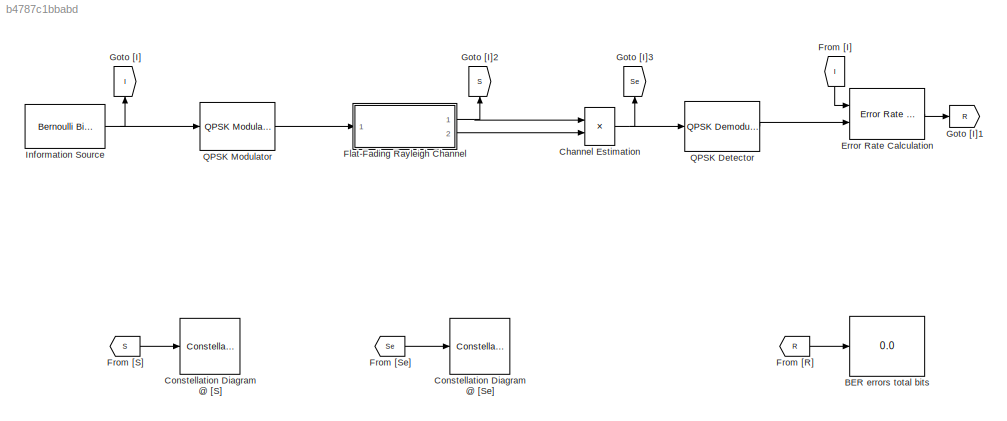
MODEL slx_b4787c1bbabd
KIND model
CONFIG AbsTol = auto
CONFIG FixedStep = auto
CONFIG MaxStep = auto
CONFIG MinStep = auto
CONFIG RelTol = 1e-3
CONFIG SampleTimeConstraint = Unconstrained
CONFIG Solver = ode45
CONFIG SolverMode = Auto
CONFIG SolverName = ode45
CONFIG StartTime = 0.0
CONFIG StopTime = Inf
BLOCK [Display] BER errors total bits
  Decimation = 1
  Format = short_e
  Ports = [1]
BLOCK [Product] Channel Estimation
  InputSameDT = off
  Inputs = */
  OutDataTypeStr = Inherit: Inherit via internal rule
  Ports = [2, 1]
  RndMeth = Floor
  SaturateOnIntegerOverflow = off
BLOCK [ConstellationDiagram] Constellation Diagram @ [S]
  Ports = [1]
  ScopeSpecificationString = comm.scopes.ConstellationDiagramBlockCfg('CurrentConfiguration', extmgr.ConfigurationSet(extmgr.Configuration('Core','General UI',true),extmgr.Configuration('Core','Source UI',true),extmgr.Configuration('Sources','WiredSimulink',true),extmgr.Configuration('Visuals','Constellation',true,'AxesProperties',struct('Color',[0 0 0],'XColor',[0.686274509803922 0.686274509803922 0.686274509803922],'YColor'...<+964ch>
BLOCK [ConstellationDiagram] Constellation Diagram @ [Se]
  Ports = [1]
  ScopeSpecificationString = comm.scopes.ConstellationDiagramBlockCfg('CurrentConfiguration', extmgr.ConfigurationSet(extmgr.Configuration('Core','General UI',true),extmgr.Configuration('Core','Source UI',true),extmgr.Configuration('Sources','WiredSimulink',true),extmgr.Configuration('Visuals','Constellation',true,'AxesProperties',struct('Color',[0 0 0],'XColor',[0.686274509803922 0.686274509803922 0.686274509803922],'YColor'...<+937ch>
BLOCK [Reference] Error Rate Calculation  REF=commsink2/Error Rate
Calculation
  N = 0
  PMode = Port
  Ports = [2, 1]
  RsMode2 = off
  SourceBlock = commsink2/Error Rate\nCalculation
  SourceType = Error Rate Calculation
  WsName = ErrorVec
  cp_mode = Entire frame
  maxBits = 1e6
  numErr = 100
  st_delay = 0
  stop = off
  subframe = []
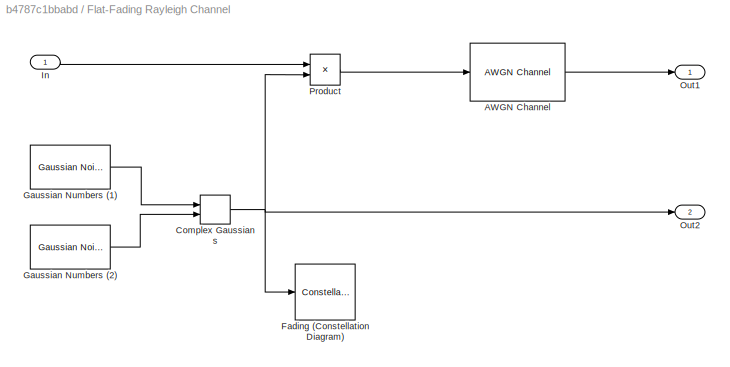
BLOCK [SubSystem] Flat-Fading Rayleigh Channel
  Ports = [1, 2]
  RequestExecContextInheritance = off
BLOCK [Reference] Flat-Fading Rayleigh Channel/AWGN Channel  REF=commchan3/AWGN
Channel
  EbNodB = 10
  EsNodB = 10
  InputProcessing = Columns as channels (frame based)
  Ports = [1, 1]
  Ps = 1
  SNRdB = 23
  SourceBlock = commchan3/AWGN\nChannel
  SourceType = AWGN Channel
  Tsym = 1
  UserDataPersistent = on
  bitsPerSym = 2
  noiseMode = Signal to noise ratio  (SNR)
  seed = 67
  variance = 1
BLOCK [RealImagToComplex] Flat-Fading Rayleigh Channel/Complex Gaussians
  Ports = [2, 1]
BLOCK [ConstellationDiagram] Flat-Fading Rayleigh Channel/Fading (Constellation Diagram)
  Ports = [1]
  ScopeSpecificationString = comm.scopes.ConstellationDiagramBlockCfg('CurrentConfiguration', extmgr.ConfigurationSet(extmgr.Configuration('Core','General UI',true),extmgr.Configuration('Core','Source UI',true),extmgr.Configuration('Sources','WiredSimulink',true),extmgr.Configuration('Visuals','Constellation',true,'AxesProperties',struct('Color',[0 0 0],'XColor',[0.686274509803922 0.686274509803922 0.686274509803922],'YColor'...<+964ch>
BLOCK [Reference] Flat-Fading Rayleigh Channel/Gaussian Numbers (1)  REF=commnoisgen2/Gaussian Noise
Generator
  Ports = [0, 1]
  SourceBlock = commnoisgen2/Gaussian Noise\nGenerator
  SourceType = Gaussian Noise Generator
  Ts = .001
  d = 1/2
  frameBased = on
  m = 0
  orient = off
  outDataType = double
  s = 41
  sampPerFrame = 500
BLOCK [Reference] Flat-Fading Rayleigh Channel/Gaussian Numbers (2)  REF=commnoisgen2/Gaussian Noise
Generator
  Ports = [0, 1]
  SourceBlock = commnoisgen2/Gaussian Noise\nGenerator
  SourceType = Gaussian Noise Generator
  Ts = .001
  d = 1/2
  frameBased = on
  m = 0
  orient = off
  outDataType = double
  s = 2^31
  sampPerFrame = 500
BLOCK [Inport] Flat-Fading Rayleigh Channel/In
  IconDisplay = Port number
BLOCK [Outport] Flat-Fading Rayleigh Channel/Out1
  IconDisplay = Port number
BLOCK [Outport] Flat-Fading Rayleigh Channel/Out2
  IconDisplay = Port number
  Port = 2
BLOCK [Product] Flat-Fading Rayleigh Channel/Product
  InputSameDT = off
  OutDataTypeStr = Inherit: Inherit via internal rule
  Ports = [2, 1]
  RndMeth = Floor
  SaturateOnIntegerOverflow = off
BLOCK [From] From [I]
  GotoTag = I
BLOCK [From] From [R]
  GotoTag = R
BLOCK [From] From [S]
  GotoTag = S
BLOCK [From] From [Se]
  GotoTag = Se
BLOCK [Goto] Goto [I]
  GotoTag = I
BLOCK [Goto] Goto [I]1
  GotoTag = R
BLOCK [Goto] Goto [I]2
  GotoTag = S
BLOCK [Goto] Goto [I]3
  GotoTag = Se
BLOCK [Reference] Information Source  REF=commrandsrc2/Bernoulli Binary
Generator
  P = 0.5
  Ports = [0, 1]
  SourceBlock = commrandsrc2/Bernoulli Binary\nGenerator
  SourceType = Bernoulli Binary Generator
  Ts = .001
  frameBased = on
  orient = off
  outDataType = double
  sampPerFrame = 1000
  seed = 61
BLOCK [Reference] QPSK Detector  REF=commdigbbndpm3/QPSK
Demodulator
Baseband
  Dec = Gray
  DecType = Hard decision
  OutType = Bit
  Ph = pi/4
  Ports = [1, 1]
  SourceBlock = commdigbbndpm3/QPSK\nDemodulator\nBaseband
  SourceType = QPSK Demodulator Baseband
  VarSource = Dialog
  Variance = 1
  derotateFactorDTMode = Same word length as input
  derotateFactorWordLen = 16
  outDtype1 = Inherit via internal rule
  outDtype2 = Inherit via internal rule
BLOCK [Reference] QPSK Modulator  REF=commdigbbndpm3/QPSK
Modulator
Baseband
  Enc = Gray
  InType = Bit
  Ph = pi/4
  Ports = [1, 1]
  SourceBlock = commdigbbndpm3/QPSK\nModulator\nBaseband
  SourceType = QPSK Modulator Baseband
  outDtype = double
  outFracLen = 15
  outFracLenMode = Best precision
  outUDDataType = sfix(16)
  outWordLen = 16
NET Channel Estimation:1 -> Goto [I]3:1, QPSK Detector:1
LINE Error Rate Calculation:1 -> Goto [I]1:1
LINE Flat-Fading Rayleigh Channel/AWGN Channel:1 -> Flat-Fading Rayleigh Channel/Out1:1
NET Flat-Fading Rayleigh Channel/Complex Gaussians:1 -> Flat-Fading Rayleigh Channel/Fading (Constellation Diagram):1, Flat-Fading Rayleigh Channel/Out2:1, Flat-Fading Rayleigh Channel/Product:2
LINE Flat-Fading Rayleigh Channel/Gaussian Numbers (1):1 -> Flat-Fading Rayleigh Channel/Complex Gaussians:1
LINE Flat-Fading Rayleigh Channel/Gaussian Numbers (2):1 -> Flat-Fading Rayleigh Channel/Complex Gaussians:2
LINE Flat-Fading Rayleigh Channel/In:1 -> Flat-Fading Rayleigh Channel/Product:1
LINE Flat-Fading Rayleigh Channel/Product:1 -> Flat-Fading Rayleigh Channel/AWGN Channel:1
NET Flat-Fading Rayleigh Channel:1 -> Channel Estimation:1, Goto [I]2:1
LINE Flat-Fading Rayleigh Channel:2 -> Channel Estimation:2
LINE From [I]:1 -> Error Rate Calculation:1
LINE From [R]:1 -> BER errors total bits:1
LINE From [S]:1 -> Constellation Diagram @ [S]:1
LINE From [Se]:1 -> Constellation Diagram @ [Se]:1
NET Information Source:1 -> Goto [I]:1, QPSK Modulator:1
LINE QPSK Detector:1 -> Error Rate Calculation:2
LINE QPSK Modulator:1 -> Flat-Fading Rayleigh Channel:1
note: NET lines group one-source signal fan-out (src -> all destinations, sorted); 1:1 wires keep LINE
